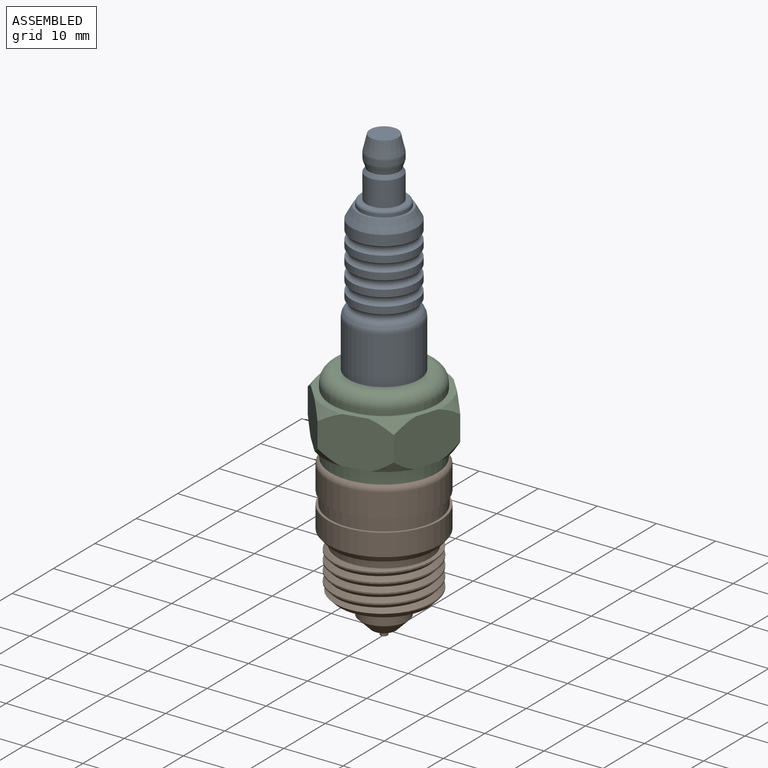
[diagram: assembled view]
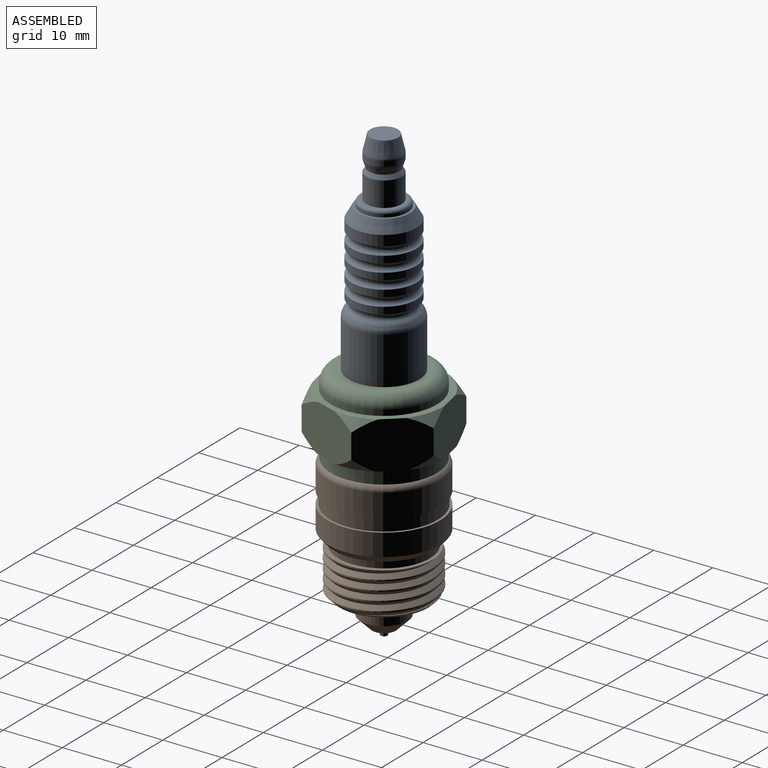
[diagram: assembled view, second angle]
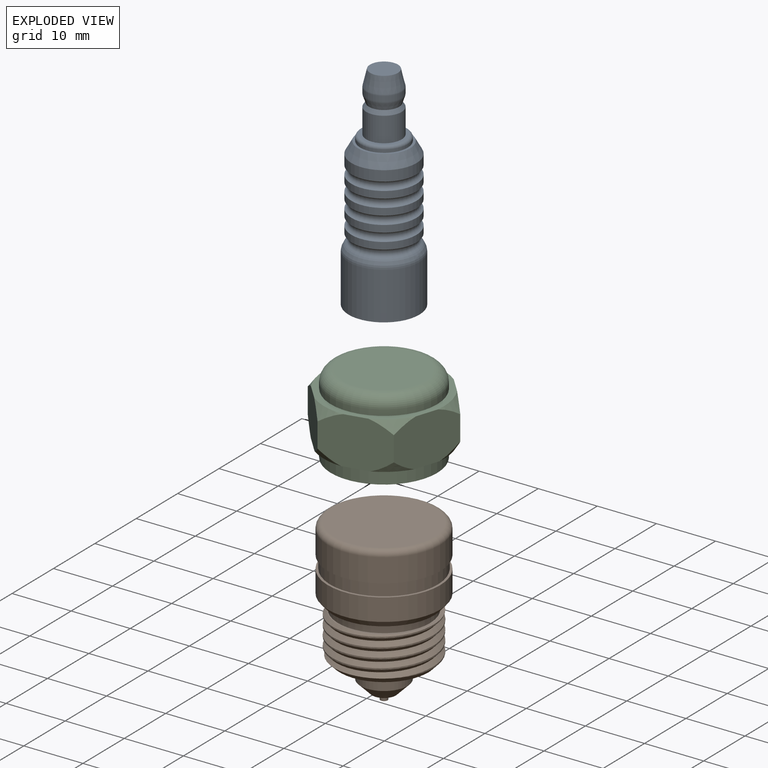
[diagram: exploded view]
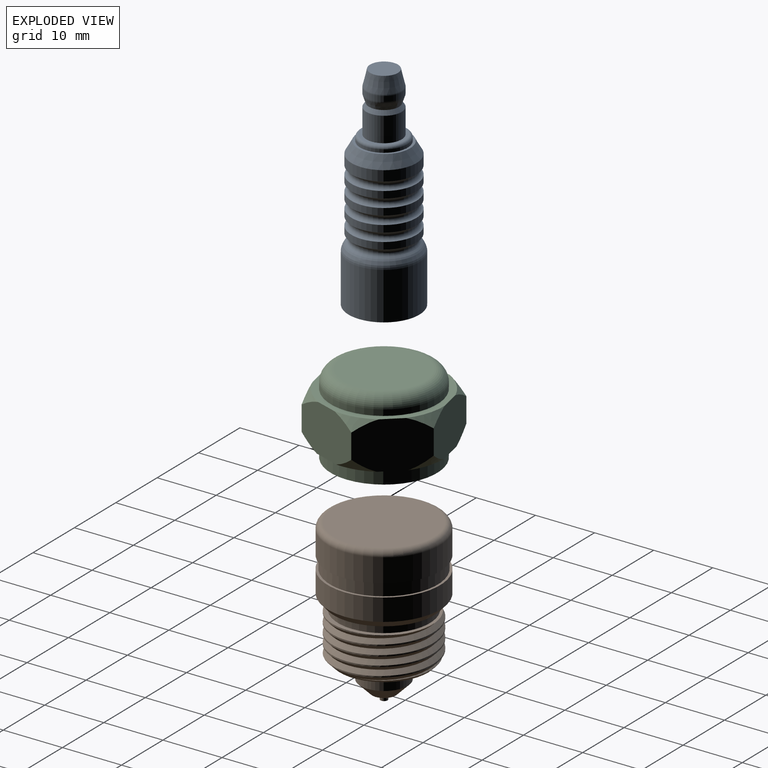
[diagram: exploded view, second angle]
ASSEMBLY  parts=3 mates=2
PART A: 26 faces, bbox 13x13x36 mm
  f0: plane 8.8x8.8mm, normal (0,0,1), area 10.6mm2, adj f3,f12
  f1: cylinder r=3mm len=6mm, axis (0,0,-1), area 79.1mm2, adj f2,f5
  f2: plane 7x7mm, normal (0,0,1), area 10.2mm2, adj f1,f11
  f3: cylinder r=4mm len=8mm, axis (0,0,-1), area 12.6mm2, adj f0,f11
  f4: cone r=3.16mm half-angle=18.5deg, axis (0,0,1), area 21.2mm2, adj f5,f10
  f5: cone r=2.56mm half-angle=33.2deg, axis (0,0,-1), area 14mm2, adj f1,f4
  f6: cylinder r=3mm len=6mm, axis (0,0,-1), area 16.3mm2, adj f9,f10
  f7: cone r=2.06mm half-angle=13.3deg, axis (0,0,-1), area 44.1mm2, adj f8,f9
  f8: plane 4.73x4.73mm, normal (0,0,1), area 17.6mm2, adj f7
  f9: torus R=2mm, axis (0,0,1), area 4.4mm2, adj f6,f7
  f10: torus R=2mm, axis (0,0,-1), area 6mm2, adj f4,f6
  f11: torus R=3.5mm, axis (0,0,1), area 18.8mm2, adj f2,f3
  f12: cone r=4.3mm half-angle=29.3deg, axis (0,0,-1), area 69.9mm2, adj f0,f13
  f13: cylinder r=5.5mm len=11mm, axis (0,0,-1), area 60mm2, adj f12,f14
  f14: torus R=5.71mm, axis (0,0,-1), area 62.4mm2, adj f13,f15
  f15: cylinder r=5.5mm len=11mm, axis (0,0,-1), area 40.1mm2, adj f14,f16
  f16: torus R=5.71mm, axis (0,0,-1), area 62.4mm2, adj f15,f17
  f17: cylinder r=5.5mm len=11mm, axis (0,0,-1), area 40.1mm2, adj f16,f18
  f18: torus R=5.71mm, axis (0,0,-1), area 62.4mm2, adj f17,f19
  f19: cylinder r=5.5mm len=11mm, axis (0,0,-1), area 40.1mm2, adj f18,f20
  f20: torus R=5.71mm, axis (0,0,-1), area 62.4mm2, adj f19,f21
  f21: cylinder r=5.5mm len=11mm, axis (0,0,-1), area 40.1mm2, adj f20,f22
  f22: torus R=5.71mm, axis (0,0,-1), area 52.6mm2, adj f21,f25
  f23: plane 12x12mm, normal (0,0,-1), area 113.1mm2, adj f24
  f24: cylinder r=6mm len=12mm, axis (0,0,-1), area 302.7mm2, adj f23,f25
  f25: torus R=4mm, axis (0,0,1), area 64.9mm2, adj f22,f24
PART B: 28 faces, bbox 21x21x27.6 mm
  f0: plane 15x14.98mm, normal (0,0,-1), area 34.7mm2, adj f13,f17,f25,f26
  f1: cylinder r=9.5mm len=19mm, axis (0,0,-1), area 222.9mm2, adj f3,f8
  f2: plane 19x19mm, normal (0,0,-1), area 22.9mm2, adj f4,f7
  f3: plane 19x19mm, normal (0,0,1), area 22.9mm2, adj f1,f4
  f4: cylinder r=9.11mm len=18.22mm, axis (0,0,-1), area 122.1mm2, adj f2,f3
  f5: plane 17x17mm, normal (0,0,1), area 227mm2, adj f6
  f6: torus R=8.5mm, axis (0,0,1), area 90.2mm2, adj f5,f7
  f7: cylinder r=9.5mm len=19mm, axis (0,0,-1), area 238.8mm2, adj f2,f6
  f8: cone r=8.51mm half-angle=41.3deg, axis (0,0,1), area 85.2mm2, adj f1,f9
  f9: plane 17.01x17.01mm, normal (0,0,-1), area 36.6mm2, adj f8,f11
  f10: plane 16.93x16.92mm, normal (0,0,1), area 21.4mm2, adj f11,f14,f15,f16
  f11: cylinder r=7.79mm len=15.58mm, axis (0,0,-1), area 67.2mm2, adj f9,f10
  f12: plane 1.2x0.02mm, normal (0,0,-1), area 0mm2, adj f13,f27
  f13: cone r=7.5mm half-angle=45deg, axis (0,0,1), area 50.1mm2, adj f0,f12,f14,f15,f16
  f14: cylinder r=8.5mm len=17mm, axis (0,0,-1), area 54.9mm2, adj f10,f13,f15,f16
  f15: bspline ~19.63x17mm, area 216mm2, adj f10,f13,f14,f16
  f16: bspline ~19.67x17.03mm, area 211.1mm2, adj f10,f13,f14,f15
  f17: cylinder r=6.7mm len=15mm, axis (0,0,-1), area 631mm2, adj f0,f18,f24,f25,f26
  f18: plane 13.4x13.4mm, normal (0,0,-1), area 90.8mm2, adj f17,f19
  f19: cylinder r=4mm len=18mm, axis (0,0,1), area 452.4mm2, adj f18,f21
  f20: plane 4x4mm, normal (0,0,-1), area 11.4mm2, adj f21,f22
  f21: cone r=2mm half-angle=45deg, axis (0,0,1), area 53.3mm2, adj f19,f20
  f22: cylinder r=0.6mm len=1.2mm, axis (0,0,1), area 4.2mm2, adj f20,f23
  f23: plane 1.2x1.2mm, normal (0,0,-1), area 1.1mm2, adj f22
  f24: plane 1.2x0.8mm, normal (0,0,-1), area 0.9mm2, adj f17,f25,f26,f27
  f25: plane 0.8x0.4mm, normal (0,1,0), area 0.3mm2, adj f0,f17,f24,f27
  f26: plane 0.8x0.4mm, normal (0,-1,0), area 0.3mm2, adj f0,f17,f24,f27
  f27: plane 1.2x0.4mm, normal (-1,0,0), area 0.5mm2, adj f12,f24,f25,f26
PART C: 25 faces, bbox 23x23x13.5 mm
  f0: plane 20.28x20.28mm, normal (0,0,1), area 65.8mm2, adj f2,f3,f4,f5,f6,f7,f8,f15
  f1: plane 20.41x20.41mm, normal (0,0,-1), area 68.4mm2, adj f2,f3,f4,f5,f6,f7,f9,f13
  f2: plane 11.26x8.01mm, normal (-0.2,0.98,0), area 79.9mm2, adj f0,f1,f6,f7,f13,f15,f18,f20
  f3: plane 8.58x8.01mm, normal (-0.75,-0.67,0), area 79.9mm2, adj f0,f1,f5,f6,f17,f19,f22,f24
  f4: plane 10.93x8.01mm, normal (0.95,-0.31,0), area 79.9mm2, adj f0,f1,f5,f7,f14,f16,f21,f23
  f5: plane 11.26x8.01mm, normal (0.2,-0.98,0), area 79.9mm2, adj f0,f1,f3,f4,f21,f22,f23,f24
  f6: plane 10.93x8.01mm, normal (-0.95,0.31,0), area 79.9mm2, adj f0,f1,f2,f3,f17,f18,f19,f20
  f7: plane 8.58x8.01mm, normal (0.75,0.67,0), area 79.9mm2, adj f0,f1,f2,f4,f13,f14,f15,f16
  f8: cylinder r=9mm len=18mm, axis (0,0,-1), area 56.5mm2, adj f0,f12
  f9: cylinder r=9mm len=18mm, axis (0,0,-1), area 141.4mm2, adj f1,f10
  f10: plane 18x18mm, normal (0,0,-1), area 254.5mm2, adj f9
  f11: plane 14x14mm, normal (0,0,1), area 153.9mm2, adj f12
  f12: torus R=7mm, axis (0,0,1), area 163.3mm2, adj f8,f11
  f13: cone r=9.3mm half-angle=32.6deg, axis (0,0,1), area 6.4mm2, adj f1,f2,f7
  f14: cone r=9.3mm half-angle=32.6deg, axis (0,0,1), area 6.4mm2, adj f1,f4,f7
  f15: cone r=9.3mm half-angle=36.9deg, axis (0,0,-1), area 6.5mm2, adj f0,f2,f7
  f16: cone r=9.3mm half-angle=36.9deg, axis (0,0,-1), area 6.5mm2, adj f0,f4,f7
  f17: cone r=9.3mm half-angle=32.6deg, axis (0,0,1), area 6.4mm2, adj f1,f3,f6
  f18: cone r=9.3mm half-angle=32.6deg, axis (0,0,1), area 6.4mm2, adj f1,f2,f6
  f19: cone r=9.3mm half-angle=36.9deg, axis (0,0,-1), area 6.5mm2, adj f0,f3,f6
  f20: cone r=9.3mm half-angle=36.9deg, axis (0,0,-1), area 6.5mm2, adj f0,f2,f6
  f21: cone r=9.3mm half-angle=32.6deg, axis (0,0,1), area 6.4mm2, adj f1,f4,f5
  f22: cone r=9.3mm half-angle=32.6deg, axis (0,0,1), area 6.4mm2, adj f1,f3,f5
  f23: cone r=9.3mm half-angle=36.9deg, axis (0,0,-1), area 6.5mm2, adj f0,f4,f5
  f24: cone r=9.3mm half-angle=36.9deg, axis (0,0,-1), area 6.5mm2, adj f0,f3,f5
PLACE A t=(-26.34,8.96,-7.24)mm fixed
PLACE B t=(-26.34,8.96,-7.24)mm
PLACE C t=(-26.34,8.96,-7.24)mm
MATE planar A.f1 <-> C.f8  axis (0,0,-1) through (-26.34,8.96,18.26)mm
MATE planar B.f1 <-> C.f8  axis (0,0,1) through (-26.34,8.96,4.76)mm
